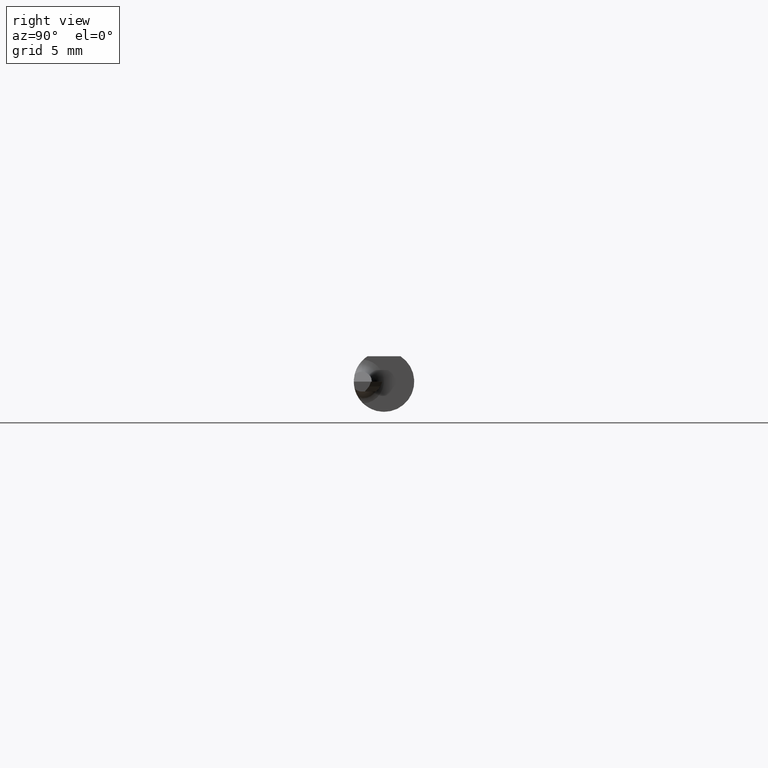
[diagram: clean part render]
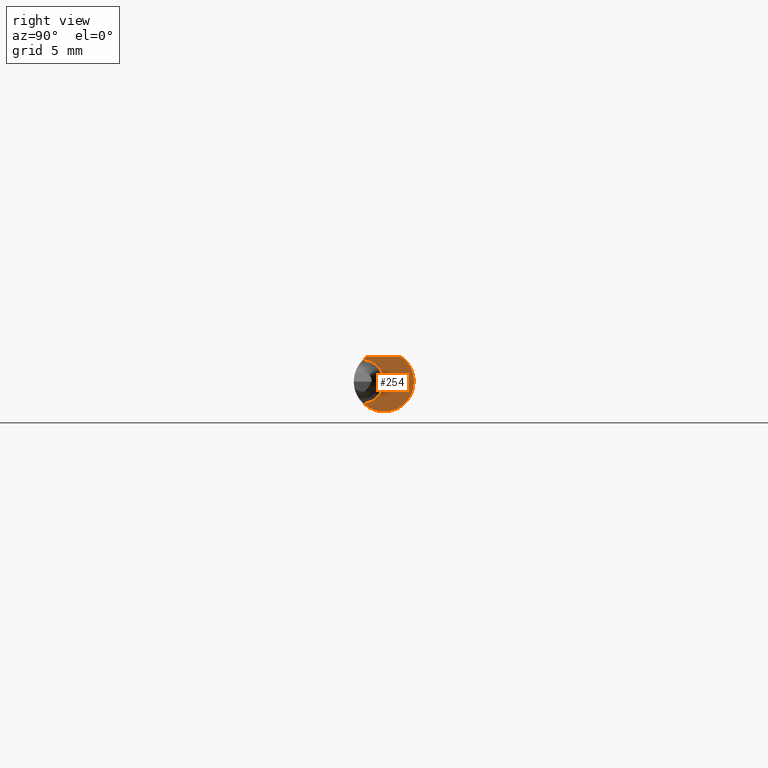
[diagram: same view with one face highlighted and labeled with its STEP entity id]
A machine part, right view. The second image highlights one B-rep face of the part: STEP entity #254.
In plain terms, the highlighted planar face has unit normal (1, 0, 0).
Its self-contained STEP definition (entity closure, byte-faithful):
#19 = EDGE_CURVE ( 'NONE', #776, #720, #819, .T. ) ;
#29 = AXIS2_PLACEMENT_3D ( 'NONE', #241, #682, #107 ) ;
#37 = LINE ( 'NONE', #371, #783 ) ;
#67 = FACE_OUTER_BOUND ( 'NONE', #333, .T. ) ;
#68 = CARTESIAN_POINT ( 'NONE',  ( 1.200000000000000400, -0.04274258451472193188, -0.04539376575039631712 ) ) ;
#84 = DIRECTION ( 'NONE',  ( 0.000000000000000000, 0.000000000000000000, 1.000000000000000000 ) ) ;
#107 = DIRECTION ( 'NONE',  ( 0.000000000000000000, 0.000000000000000000, -1.000000000000000000 ) ) ;
#153 = ORIENTED_EDGE ( 'NONE', *, *, #601, .F. ) ;
#181 = DIRECTION ( 'NONE',  ( 0.000000000000000000, 1.000000000000000000, 0.000000000000000000 ) ) ;
#241 = CARTESIAN_POINT ( 'NONE',  ( 1.200000000000000400, 0.000000000000000000, 0.000000000000000000 ) ) ;
#252 = ORIENTED_EDGE ( 'NONE', *, *, #19, .T. ) ;
#254 = ADVANCED_FACE ( 'NONE', ( #67 ), #778, .T. ) ;
#333 = EDGE_LOOP ( 'NONE', ( #683, #153, #654, #252 ) ) ;
#363 = CARTESIAN_POINT ( 'NONE',  ( 1.200000000000000400, -0.04274258451472193188, 0.04539376575039631712 ) ) ;
#371 = CARTESIAN_POINT ( 'NONE',  ( 1.200000000000000400, 0.06235000000000000264, 0.05234999999999997294 ) ) ;
#372 = VERTEX_POINT ( 'NONE', #470 ) ;
#379 = DIRECTION ( 'NONE',  ( 0.000000000000000000, 0.000000000000000000, -1.000000000000000000 ) ) ;
#382 = CIRCLE ( 'NONE', #539, 0.06235000000000000264 ) ;
#401 = CARTESIAN_POINT ( 'NONE',  ( 1.200000000000000400, -0.04585000000000002962, 0.000000000000000000 ) ) ;
#417 = AXIS2_PLACEMENT_3D ( 'NONE', #401, #671, #84 ) ;
#470 = CARTESIAN_POINT ( 'NONE',  ( 1.200000000000000400, 0.03386738844375224849, 0.05234999999999997294 ) ) ;
#478 = VERTEX_POINT ( 'NONE', #491 ) ;
#491 = CARTESIAN_POINT ( 'NONE',  ( 1.200000000000000400, -0.03386738844375225543, 0.05234999999999997294 ) ) ;
#525 = DIRECTION ( 'NONE',  ( 0.000000000000000000, 0.000000000000000000, -1.000000000000000000 ) ) ;
#539 = AXIS2_PLACEMENT_3D ( 'NONE', #580, #638, #379 ) ;
#548 = EDGE_CURVE ( 'NONE', #720, #372, #554, .T. ) ;
#554 = CIRCLE ( 'NONE', #29, 0.06235000000000000264 ) ;
#580 = CARTESIAN_POINT ( 'NONE',  ( 1.200000000000000400, 0.000000000000000000, 0.000000000000000000 ) ) ;
#601 = EDGE_CURVE ( 'NONE', #478, #372, #37, .T. ) ;
#603 = AXIS2_PLACEMENT_3D ( 'NONE', #774, #826, #525 ) ;
#638 = DIRECTION ( 'NONE',  ( 1.000000000000000000, 0.000000000000000000, 0.000000000000000000 ) ) ;
#654 = ORIENTED_EDGE ( 'NONE', *, *, #702, .T. ) ;
#671 = DIRECTION ( 'NONE',  ( -1.000000000000000000, -0.000000000000000000, -0.000000000000000000 ) ) ;
#682 = DIRECTION ( 'NONE',  ( 1.000000000000000000, 0.000000000000000000, 0.000000000000000000 ) ) ;
#683 = ORIENTED_EDGE ( 'NONE', *, *, #548, .T. ) ;
#702 = EDGE_CURVE ( 'NONE', #478, #776, #382, .T. ) ;
#720 = VERTEX_POINT ( 'NONE', #68 ) ;
#774 = CARTESIAN_POINT ( 'NONE',  ( 1.200000000000000400, 0.06234999999999996795, 0.000000000000000000 ) ) ;
#776 = VERTEX_POINT ( 'NONE', #363 ) ;
#778 = PLANE ( 'NONE',  #603 ) ;
#783 = VECTOR ( 'NONE', #181, 39.37007874015748143 ) ;
#819 = CIRCLE ( 'NONE', #417, 0.04549999999999999878 ) ;
#826 = DIRECTION ( 'NONE',  ( 1.000000000000000000, 0.000000000000000000, 0.000000000000000000 ) ) ;